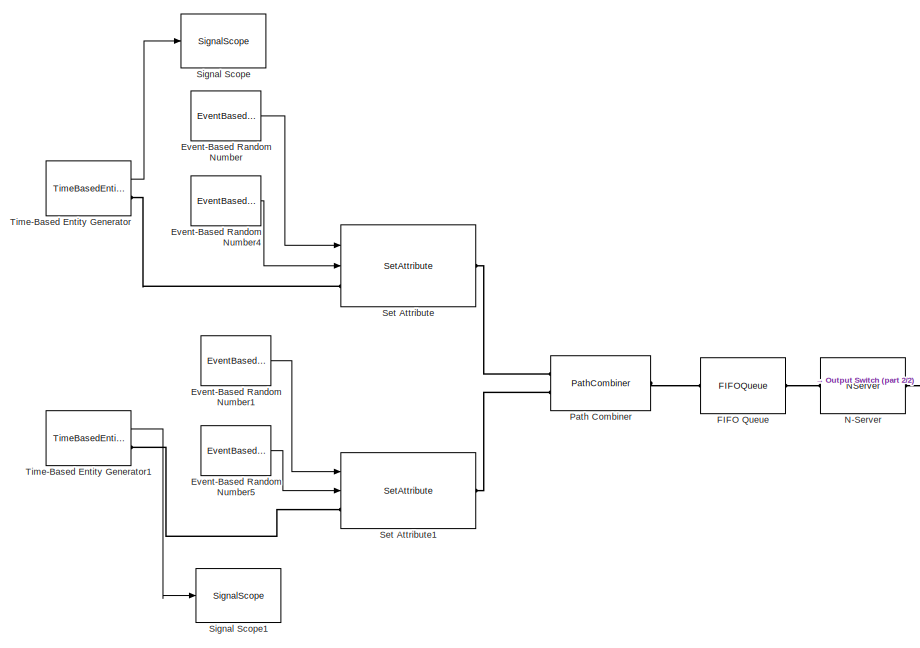
[diagram: root canvas - part 1/2, left side, full height]
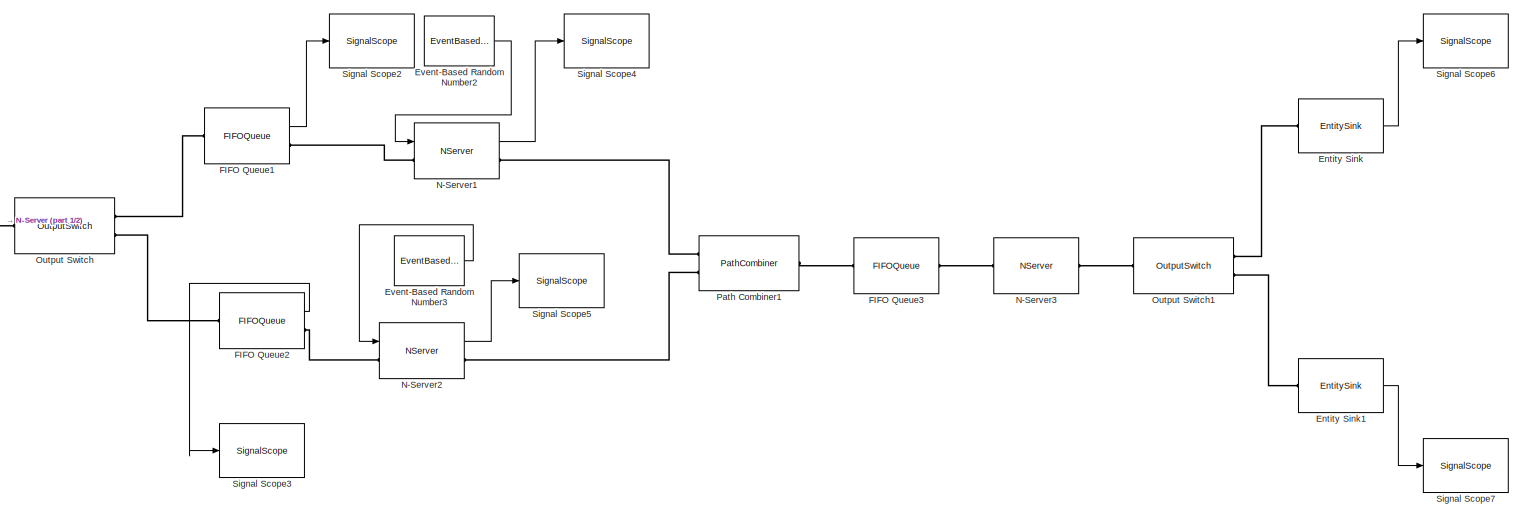
[diagram: root canvas - part 2/2, middle right region]
MODEL slx_f4340a7b78eb
KIND model
BLOCK [EntitySink] Entity Sink
  OutputPortMap = o0
  Ports = [0, 1, 0, 0, 0, 1]
  StatNumberArrived = on
BLOCK [EntitySink] Entity Sink1
  OutputPortMap = o0
  Ports = [0, 1, 0, 0, 0, 1]
  StatNumberArrived = on
BLOCK [EventBasedRandomNumber] Event-Based Random Number
  Distribution = Uniform
  OutputPortMap = o0
  Ports = [0, 1]
  Seed = 3242344
  maxUnif = 27
  minUnif = 13
BLOCK [EventBasedRandomNumber] Event-Based Random Number1
  Distribution = Uniform
  OutputPortMap = o0
  Ports = [0, 1]
  Seed = 52487
  maxUnif = 57
  minUnif = 33
BLOCK [EventBasedRandomNumber] Event-Based Random Number2
  Distribution = Uniform
  OutputPortMap = o0
  Ports = [0, 1]
  maxUnif = 840
  minUnif = 600
BLOCK [EventBasedRandomNumber] Event-Based Random Number3
  Distribution = Uniform
  OutputPortMap = o0
  Ports = [0, 1]
  maxUnif = 1440
  minUnif = 960
BLOCK [EventBasedRandomNumber] Event-Based Random Number4
  Distribution = Uniform
  OutputPortMap = o0
  Ports = [0, 1]
  maxUnif = 30
  minUnif = 20
BLOCK [EventBasedRandomNumber] Event-Based Random Number5
  Distribution = Uniform
  OutputPortMap = o0
  Ports = [0, 1]
  maxUnif = 35
  minUnif = 25
BLOCK [FIFOQueue] FIFO Queue
  Ports = [0, 0, 0, 0, 0, 1, 1]
BLOCK [FIFOQueue] FIFO Queue1
  OutputPortMap = o0
  Ports = [0, 1, 0, 0, 0, 1, 1]
  StatNumberDeparted = on
BLOCK [FIFOQueue] FIFO Queue2
  OutputPortMap = o0
  Ports = [0, 1, 0, 0, 0, 1, 1]
  StatNumberDeparted = on
BLOCK [FIFOQueue] FIFO Queue3
  Ports = [0, 0, 0, 0, 0, 1, 1]
BLOCK [NServer] N-Server
  AttributeName = Intrare
  NumberOfServers = 2
  Ports = [0, 0, 0, 0, 0, 1, 1]
  ServiceTimeFrom = Attribute
BLOCK [NServer] N-Server1
  InputPortMap = u0
  NumberOfServers = 6
  OutputPortMap = o0
  Ports = [1, 1, 0, 0, 0, 1, 1]
  ServiceTimeFrom = Signal port t
  StatNumberDeparted = on
BLOCK [NServer] N-Server2
  InputPortMap = u0
  NumberOfServers = 3
  OutputPortMap = o0
  Ports = [1, 1, 0, 0, 0, 1, 1]
  ServiceTimeFrom = Signal port t
  StatNumberDeparted = on
BLOCK [NServer] N-Server3
  AttributeName = Iesire
  NumberOfServers = 2
  Ports = [0, 0, 0, 0, 0, 1, 1]
  ServiceTimeFrom = Attribute
BLOCK [OutputSwitch] Output Switch
  AttributeName = Nava
  NumberOutputPorts = 2
  Ports = [0, 0, 0, 0, 0, 1, 2]
  SwitchingCriterion = From attribute
BLOCK [OutputSwitch] Output Switch1
  AttributeName = Nava
  NumberOutputPorts = 2
  Ports = [0, 0, 0, 0, 0, 1, 2]
  SwitchingCriterion = From attribute
BLOCK [PathCombiner] Path Combiner
  NumberInputPorts = 2
  Ports = [0, 0, 0, 0, 0, 2, 1]
BLOCK [PathCombiner] Path Combiner1
  NumberInputPorts = 2
  Ports = [0, 0, 0, 0, 0, 2, 1]
BLOCK [SetAttribute] Set Attribute
  AttributeFrom = Dialog|Signal port|Signal port
  AttributeName = Nava|Intrare|Iesire
  AttributeTreatAsVector = 1|1|1
  AttributeValue = 1|1|1
  EvaluatedAttributeValue = { 1;[];[]}
  InputPortMap = u1,u2
  Ports = [2, 0, 0, 0, 0, 1, 1]
BLOCK [SetAttribute] Set Attribute1
  AttributeFrom = Dialog|Signal port|Signal port
  AttributeName = Nava|Intrare|Iesire
  AttributeTreatAsVector = 1|1|1
  AttributeValue = 2|1|1
  EvaluatedAttributeValue = { 2;[];[]}
  InputPortMap = u1,u2
  Ports = [2, 0, 0, 0, 0, 1, 1]
BLOCK [SignalScope] Signal Scope
  CopyFcn = des.scope.CallbackSupport('seCopyFcn',gcbh)
  DeleteFcn = des.scope.CallbackSupport('seDeleteFcn',gcbh)
  InputPortMap = u0
  LoadFcn = des.scope.CallbackSupport('seLoadFcn',gcbh)
  NameChangeFcn = des.scope.CallbackSupport('seNameChangeFcn',gcbh)
  OpenFcn = des.scope.CallbackSupport('seOpenFcn',gcbh)
  Ports = [1]
  PreSaveFcn = des.scope.CallbackSupport('sePreSaveFcn',gcbh)
  StartFcn = des.scope.CallbackSupport('seStartFcn',gcbh)
  StopFcn = des.scope.CallbackSupport('seStopFcn',gcbh)
BLOCK [SignalScope] Signal Scope1
  CopyFcn = des.scope.CallbackSupport('seCopyFcn',gcbh)
  DeleteFcn = des.scope.CallbackSupport('seDeleteFcn',gcbh)
  InputPortMap = u0
  LoadFcn = des.scope.CallbackSupport('seLoadFcn',gcbh)
  NameChangeFcn = des.scope.CallbackSupport('seNameChangeFcn',gcbh)
  OpenFcn = des.scope.CallbackSupport('seOpenFcn',gcbh)
  Ports = [1]
  PreSaveFcn = des.scope.CallbackSupport('sePreSaveFcn',gcbh)
  StartFcn = des.scope.CallbackSupport('seStartFcn',gcbh)
  StopFcn = des.scope.CallbackSupport('seStopFcn',gcbh)
BLOCK [SignalScope] Signal Scope2
  CopyFcn = des.scope.CallbackSupport('seCopyFcn',gcbh)
  DeleteFcn = des.scope.CallbackSupport('seDeleteFcn',gcbh)
  InputPortMap = u0
  LoadFcn = des.scope.CallbackSupport('seLoadFcn',gcbh)
  NameChangeFcn = des.scope.CallbackSupport('seNameChangeFcn',gcbh)
  OpenFcn = des.scope.CallbackSupport('seOpenFcn',gcbh)
  Ports = [1]
  PreSaveFcn = des.scope.CallbackSupport('sePreSaveFcn',gcbh)
  StartFcn = des.scope.CallbackSupport('seStartFcn',gcbh)
  StopFcn = des.scope.CallbackSupport('seStopFcn',gcbh)
BLOCK [SignalScope] Signal Scope3
  CopyFcn = des.scope.CallbackSupport('seCopyFcn',gcbh)
  DeleteFcn = des.scope.CallbackSupport('seDeleteFcn',gcbh)
  InputPortMap = u0
  LoadFcn = des.scope.CallbackSupport('seLoadFcn',gcbh)
  NameChangeFcn = des.scope.CallbackSupport('seNameChangeFcn',gcbh)
  OpenFcn = des.scope.CallbackSupport('seOpenFcn',gcbh)
  Ports = [1]
  PreSaveFcn = des.scope.CallbackSupport('sePreSaveFcn',gcbh)
  StartFcn = des.scope.CallbackSupport('seStartFcn',gcbh)
  StopFcn = des.scope.CallbackSupport('seStopFcn',gcbh)
BLOCK [SignalScope] Signal Scope4
  CopyFcn = des.scope.CallbackSupport('seCopyFcn',gcbh)
  DeleteFcn = des.scope.CallbackSupport('seDeleteFcn',gcbh)
  InputPortMap = u0
  LoadFcn = des.scope.CallbackSupport('seLoadFcn',gcbh)
  NameChangeFcn = des.scope.CallbackSupport('seNameChangeFcn',gcbh)
  OpenFcn = des.scope.CallbackSupport('seOpenFcn',gcbh)
  Ports = [1]
  PreSaveFcn = des.scope.CallbackSupport('sePreSaveFcn',gcbh)
  StartFcn = des.scope.CallbackSupport('seStartFcn',gcbh)
  StopFcn = des.scope.CallbackSupport('seStopFcn',gcbh)
BLOCK [SignalScope] Signal Scope5
  CopyFcn = des.scope.CallbackSupport('seCopyFcn',gcbh)
  DeleteFcn = des.scope.CallbackSupport('seDeleteFcn',gcbh)
  InputPortMap = u0
  LoadFcn = des.scope.CallbackSupport('seLoadFcn',gcbh)
  NameChangeFcn = des.scope.CallbackSupport('seNameChangeFcn',gcbh)
  OpenFcn = des.scope.CallbackSupport('seOpenFcn',gcbh)
  Ports = [1]
  PreSaveFcn = des.scope.CallbackSupport('sePreSaveFcn',gcbh)
  StartFcn = des.scope.CallbackSupport('seStartFcn',gcbh)
  StopFcn = des.scope.CallbackSupport('seStopFcn',gcbh)
BLOCK [SignalScope] Signal Scope6
  CopyFcn = des.scope.CallbackSupport('seCopyFcn',gcbh)
  DeleteFcn = des.scope.CallbackSupport('seDeleteFcn',gcbh)
  InputPortMap = u0
  LoadFcn = des.scope.CallbackSupport('seLoadFcn',gcbh)
  NameChangeFcn = des.scope.CallbackSupport('seNameChangeFcn',gcbh)
  OpenFcn = des.scope.CallbackSupport('seOpenFcn',gcbh)
  Ports = [1]
  PreSaveFcn = des.scope.CallbackSupport('sePreSaveFcn',gcbh)
  StartFcn = des.scope.CallbackSupport('seStartFcn',gcbh)
  StopFcn = des.scope.CallbackSupport('seStopFcn',gcbh)
  XMax = 43546.5109948078
  XMin = -431.153574206018
  YMax = 378.75
  YMin = -3.75
BLOCK [SignalScope] Signal Scope7
  CopyFcn = des.scope.CallbackSupport('seCopyFcn',gcbh)
  DeleteFcn = des.scope.CallbackSupport('seDeleteFcn',gcbh)
  InputPortMap = u0
  LoadFcn = des.scope.CallbackSupport('seLoadFcn',gcbh)
  NameChangeFcn = des.scope.CallbackSupport('seNameChangeFcn',gcbh)
  OpenFcn = des.scope.CallbackSupport('seOpenFcn',gcbh)
  Ports = [1]
  PreSaveFcn = des.scope.CallbackSupport('sePreSaveFcn',gcbh)
  StartFcn = des.scope.CallbackSupport('seStartFcn',gcbh)
  StopFcn = des.scope.CallbackSupport('seStopFcn',gcbh)
  XMax = 81920
  YMax = 320
BLOCK [TimeBasedEntityGenerator] Time-Based Entity Generator
  Distribution = Uniform
  InitialSeed = 23423
  Maximum = 130
  Minimum = 100
  OutputPortMap = o0
  Period = 0.5
  Ports = [0, 1, 0, 0, 0, 0, 1]
  StatNumberDeparted = on
BLOCK [TimeBasedEntityGenerator] Time-Based Entity Generator1
  Distribution = Uniform
  InitialSeed = 2355346
  Maximum = 207
  Minimum = 193
  OutputPortMap = o0
  Ports = [0, 1, 0, 0, 0, 0, 1]
  StatNumberDeparted = on
LINE Entity Sink1:1 -> Signal Scope7:1
LINE Entity Sink:1 -> Signal Scope6:1
LINE Event-Based Random Number1:1 -> Set Attribute1:1
LINE Event-Based Random Number2:1 -> N-Server1:1
LINE Event-Based Random Number3:1 -> N-Server2:1
LINE Event-Based Random Number4:1 -> Set Attribute:2
LINE Event-Based Random Number5:1 -> Set Attribute1:2
LINE Event-Based Random Number:1 -> Set Attribute:1
LINE FIFO Queue1:1 -> Signal Scope2:1
LINE FIFO Queue2:1 -> Signal Scope3:1
LINE N-Server1:1 -> Signal Scope4:1
LINE N-Server2:1 -> Signal Scope5:1
LINE Time-Based Entity Generator1:1 -> Signal Scope1:1
LINE Time-Based Entity Generator:1 -> Signal Scope:1
PLINE Entity Sink1:LConn1 -- Output Switch1:RConn2
PLINE Entity Sink:LConn1 -- Output Switch1:RConn1
PLINE FIFO Queue1:LConn1 -- Output Switch:RConn1
PLINE FIFO Queue1:RConn1 -- N-Server1:LConn1
PLINE FIFO Queue2:LConn1 -- Output Switch:RConn2
PLINE FIFO Queue2:RConn1 -- N-Server2:LConn1
PLINE FIFO Queue3:LConn1 -- Path Combiner1:RConn1
PLINE FIFO Queue3:RConn1 -- N-Server3:LConn1
PLINE FIFO Queue:LConn1 -- Path Combiner:RConn1
PLINE FIFO Queue:RConn1 -- N-Server:LConn1
PLINE N-Server1:RConn1 -- Path Combiner1:LConn1
PLINE N-Server2:RConn1 -- Path Combiner1:LConn2
PLINE N-Server3:RConn1 -- Output Switch1:LConn1
PLINE N-Server:RConn1 -- Output Switch:LConn1
PLINE Path Combiner:LConn1 -- Set Attribute:RConn1
PLINE Path Combiner:LConn2 -- Set Attribute1:RConn1
PLINE Set Attribute1:LConn1 -- Time-Based Entity Generator1:RConn1
PLINE Set Attribute:LConn1 -- Time-Based Entity Generator:RConn1
